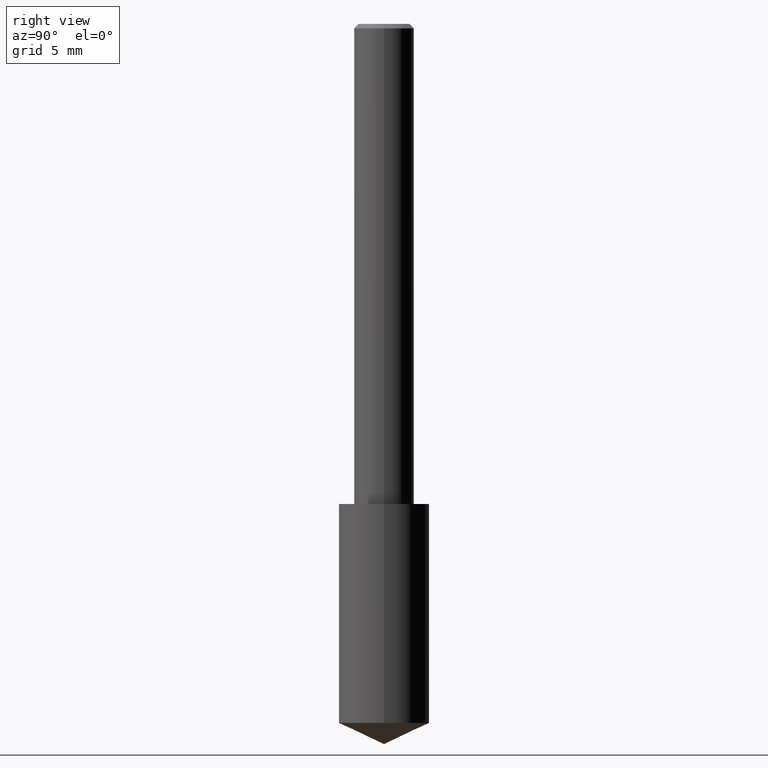
[diagram: clean part render]
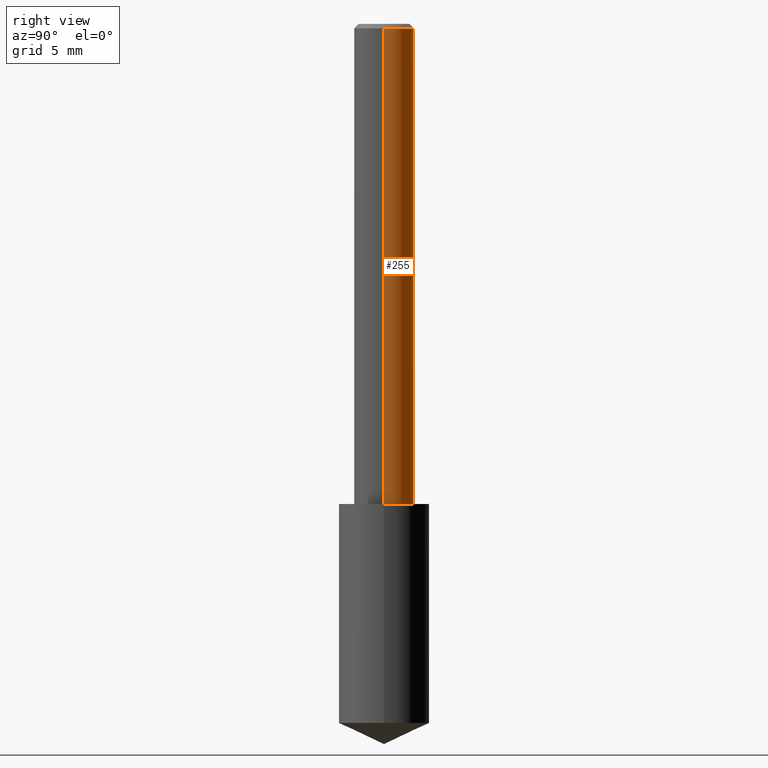
[diagram: same view with one face highlighted and labeled with its STEP entity id]
A machine part, right view. The second image highlights one B-rep face of the part: STEP entity #255.
In plain terms, the highlighted cylindrical surface (edge-blend (fillet) strip) has radius 1.5875 mm, axis along (-0, 0, 1).
Its self-contained STEP definition (entity closure, byte-faithful):
#3 = FACE_OUTER_BOUND ( 'NONE', #249, .T. ) ;
#5 = VECTOR ( 'NONE', #302, 39.37007874015748143 ) ;
#7 = EDGE_CURVE ( 'NONE', #191, #50, #194, .T. ) ;
#19 = CARTESIAN_POINT ( 'NONE',  ( 2.292627005798582375E-31, -3.273263755165473266E-17, -0.009375000000000069042 ) ) ;
#20 = CARTESIAN_POINT ( 'NONE',  ( 0.06250000000000000000, -4.691678049070464390E-16, -0.009375000000000069042 ) ) ;
#32 = AXIS2_PLACEMENT_3D ( 'NONE', #19, #66, #227 ) ;
#38 = CARTESIAN_POINT ( 'NONE',  ( 2.445468806185137438E-29, -3.491481338843146371E-15, -1.000000000000000222 ) ) ;
#42 = AXIS2_PLACEMENT_3D ( 'NONE', #38, #142, #137 ) ;
#50 = VERTEX_POINT ( 'NONE', #313 ) ;
#66 = DIRECTION ( 'NONE',  ( -2.445468806185136597E-29, 3.491481338843145583E-15, 1.000000000000000000 ) ) ;
#82 = CARTESIAN_POINT ( 'NONE',  ( -0.06250000000000000000, -1.318017778347336672E-15, -0.009375000000000069042 ) ) ;
#93 = EDGE_CURVE ( 'NONE', #161, #305, #184, .T. ) ;
#95 = AXIS2_PLACEMENT_3D ( 'NONE', #189, #113, #192 ) ;
#102 = CARTESIAN_POINT ( 'NONE',  ( -0.06250000000000006939, 4.440892098500631092E-16, -3.074334431409319267E-30 ) ) ;
#113 = DIRECTION ( 'NONE',  ( -2.445468806185136597E-29, 3.491481338843145583E-15, 1.000000000000000000 ) ) ;
#128 = LINE ( 'NONE', #237, #5 ) ;
#135 = LINE ( 'NONE', #102, #223 ) ;
#137 = DIRECTION ( 'NONE',  ( 1.000000000000000000, -6.982962677686264344E-15, 0.000000000000000000 ) ) ;
#142 = DIRECTION ( 'NONE',  ( -2.445468806185136597E-29, 3.491481338843145583E-15, 1.000000000000000000 ) ) ;
#158 = ORIENTED_EDGE ( 'NONE', *, *, #321, .F. ) ;
#161 = VERTEX_POINT ( 'NONE', #20 ) ;
#182 = CARTESIAN_POINT ( 'NONE',  ( 0.06250000000000012490, -3.927916506198539224E-15, -1.000000000000000222 ) ) ;
#184 = CIRCLE ( 'NONE', #32, 0.06250000000000000000 ) ;
#187 = DIRECTION ( 'NONE',  ( -2.445468806185136877E-29, 3.491481338843145188E-15, 1.000000000000000000 ) ) ;
#189 = CARTESIAN_POINT ( 'NONE',  ( 0.000000000000000000, 0.000000000000000000, 0.000000000000000000 ) ) ;
#191 = VERTEX_POINT ( 'NONE', #182 ) ;
#192 = DIRECTION ( 'NONE',  ( 1.000000000000000000, -6.982962677686266711E-15, 4.876176775795935793E-29 ) ) ;
#194 = CIRCLE ( 'NONE', #42, 0.06250000000000012490 ) ;
#195 = ORIENTED_EDGE ( 'NONE', *, *, #273, .T. ) ;
#211 = CYLINDRICAL_SURFACE ( 'NONE', #95, 0.06250000000000006939 ) ;
#223 = VECTOR ( 'NONE', #187, 39.37007874015748143 ) ;
#227 = DIRECTION ( 'NONE',  ( 1.000000000000000000, -6.982962677686266711E-15, 0.000000000000000000 ) ) ;
#237 = CARTESIAN_POINT ( 'NONE',  ( 0.06250000000000006939, -4.364351673553921624E-16, 3.047610484872463374E-30 ) ) ;
#238 = ORIENTED_EDGE ( 'NONE', *, *, #93, .F. ) ;
#249 = EDGE_LOOP ( 'NONE', ( #281, #195, #238, #158 ) ) ;
#255 = ADVANCED_FACE ( 'NONE', ( #3 ), #211, .T. ) ;
#273 = EDGE_CURVE ( 'NONE', #50, #305, #135, .T. ) ;
#281 = ORIENTED_EDGE ( 'NONE', *, *, #7, .T. ) ;
#302 = DIRECTION ( 'NONE',  ( -2.445468806185136877E-29, 3.491481338843145188E-15, 1.000000000000000000 ) ) ;
#305 = VERTEX_POINT ( 'NONE', #82 ) ;
#313 = CARTESIAN_POINT ( 'NONE',  ( -0.06250000000000012490, -1.318017778347335489E-15, -1.000000000000000222 ) ) ;
#321 = EDGE_CURVE ( 'NONE', #191, #161, #128, .T. ) ;